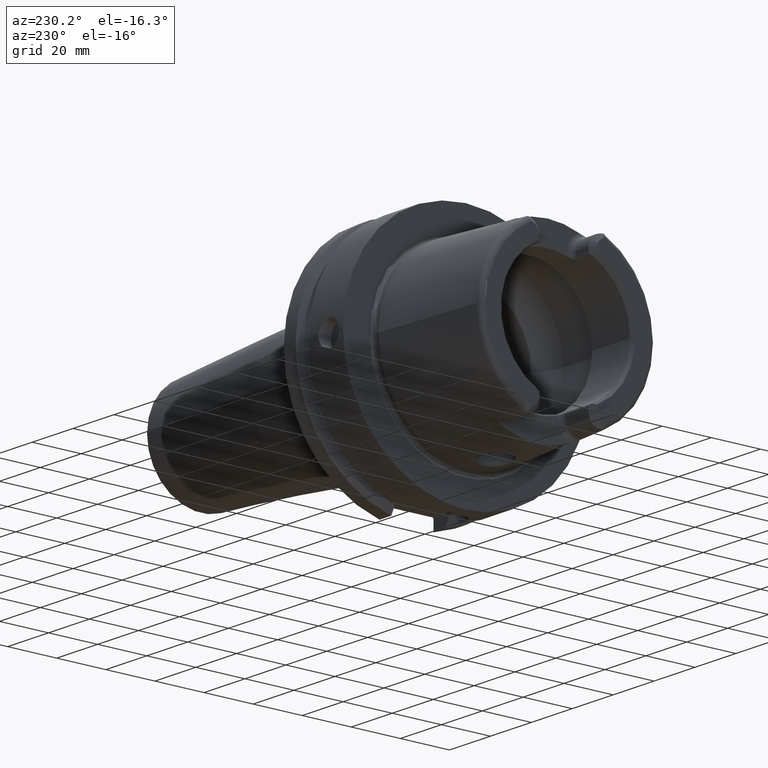
[diagram: clean part render]
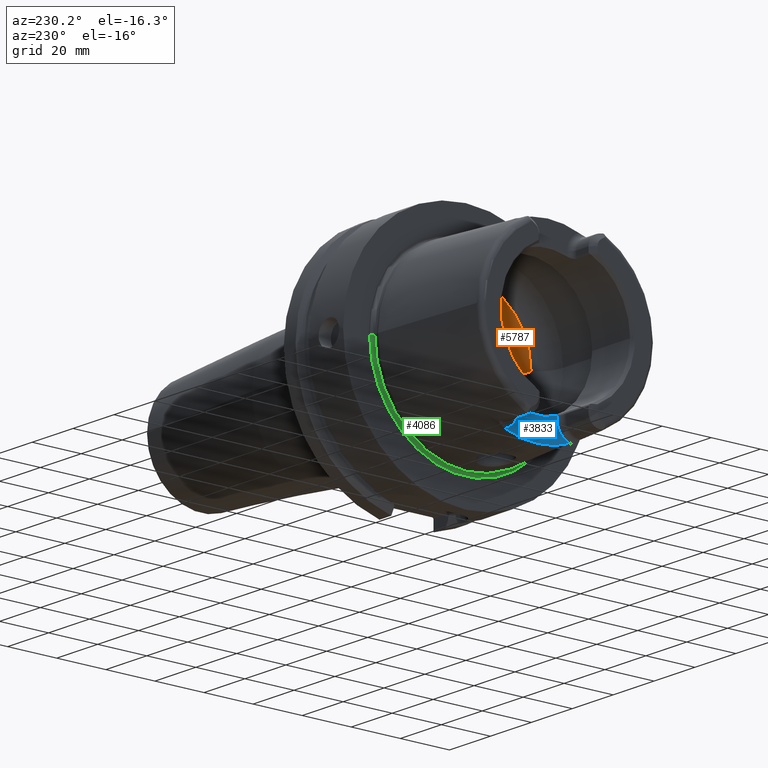
[diagram: same view with three faces highlighted in distinct colors, each labeled with its STEP entity id]
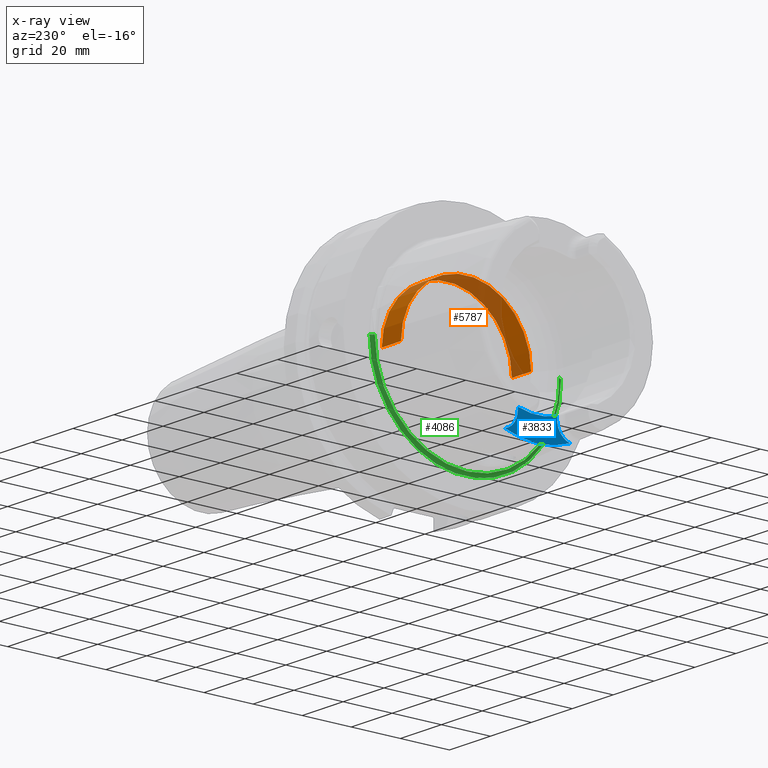
[diagram: x-ray of the same camera — body ghosted, the three highlighted faces saturated]
A machine part, auxiliary view with three faces highlighted in distinct colors.
The next image is the same camera in x-ray (body ghosted, the three faces saturated) — at least one of them is partly hidden behind the body in this view.
Their STEP definitions:

[orange] entity #5787 — the highlighted cylindrical surface (partial cylindrical patch) has radius 26.5 mm, axis along (1, 0, 0).
#2080=CARTESIAN_POINT('',(-1.E-1,0.E0,0.E0));
#2081=DIRECTION('',(1.E0,0.E0,0.E0));
#2082=DIRECTION('',(0.E0,1.E0,0.E0));
#2083=AXIS2_PLACEMENT_3D('',#2080,#2081,#2082);
#2242=DIRECTION('',(-1.E0,0.E0,0.E0));
#2243=VECTOR('',#2242,9.4E0);
#2244=CARTESIAN_POINT('',(9.3E0,2.65E1,0.E0));
#2245=LINE('',#2244,#2243);
#2251=DIRECTION('',(-1.E0,0.E0,0.E0));
#2252=VECTOR('',#2251,9.4E0);
#2253=CARTESIAN_POINT('',(9.3E0,-2.65E1,0.E0));
#2254=LINE('',#2253,#2252);
#2255=CARTESIAN_POINT('',(9.3E0,0.E0,0.E0));
#2256=DIRECTION('',(1.E0,0.E0,0.E0));
#2257=DIRECTION('',(0.E0,1.E0,0.E0));
#2258=AXIS2_PLACEMENT_3D('',#2255,#2256,#2257);
#2726=CARTESIAN_POINT('',(9.3E0,2.65E1,0.E0));
#2728=VERTEX_POINT('',#2726);
#2730=CARTESIAN_POINT('',(9.3E0,-2.65E1,0.E0));
#2732=VERTEX_POINT('',#2730);
#2733=CARTESIAN_POINT('',(-1.E-1,2.65E1,0.E0));
#2734=VERTEX_POINT('',#2733);
#2745=CARTESIAN_POINT('',(-1.E-1,-2.65E1,0.E0));
#2746=VERTEX_POINT('',#2745);
#5775=CARTESIAN_POINT('',(-5.3125E1,0.E0,0.E0));
#5776=DIRECTION('',(1.E0,0.E0,0.E0));
#5777=DIRECTION('',(0.E0,-1.E0,0.E0));
#5778=AXIS2_PLACEMENT_3D('',#5775,#5776,#5777);
#5779=CYLINDRICAL_SURFACE('',#5778,2.65E1);
#5780=ORIENTED_EDGE('',*,*,#5765,.T.);
#5781=ORIENTED_EDGE('',*,*,#5699,.T.);
#5782=ORIENTED_EDGE('',*,*,#5769,.F.);
#5784=ORIENTED_EDGE('',*,*,#5783,.F.);
#5785=EDGE_LOOP('',(#5780,#5781,#5782,#5784));
#5786=FACE_OUTER_BOUND('',#5785,.F.);
#5787=ADVANCED_FACE('',(#5786),#5779,.F.);
#2084=CIRCLE('',#2083,2.65E1);
#2259=CIRCLE('',#2258,2.65E1);
#5699=EDGE_CURVE('',#2734,#2746,#2084,.T.);
#5765=EDGE_CURVE('',#2728,#2734,#2245,.T.);
#5769=EDGE_CURVE('',#2732,#2746,#2254,.T.);
#5783=EDGE_CURVE('',#2728,#2732,#2259,.T.);

[blue] entity #3833 — the highlighted planar face has unit normal (-1, 0, 0).
#549=CARTESIAN_POINT('',(-3.5E1,0.E0,0.E0));
#550=DIRECTION('',(1.E0,0.E0,0.E0));
#551=DIRECTION('',(0.E0,-3.659355944317E-1,-9.306401779033E-1));
#552=AXIS2_PLACEMENT_3D('',#549,#550,#551);
#659=CARTESIAN_POINT('',(-3.5E1,1.326662904053E1,-3.373942900971E1));
#700=CARTESIAN_POINT('',(-3.5E1,-8.009999999994E0,-2.576044140549E1));
#701=CARTESIAN_POINT('',(-3.5E1,-7.269616392494E0,-2.599521452766E1));
#702=CARTESIAN_POINT('',(-3.5E1,-5.774680607735E0,-2.639793295020E1));
#703=CARTESIAN_POINT('',(-3.5E1,-3.481759859027E0,-2.680464578135E1));
#704=CARTESIAN_POINT('',(-3.5E1,-1.163574268408E0,-2.700848033442E1));
#705=CARTESIAN_POINT('',(-3.5E1,1.163574229636E0,-2.700848033529E1));
#706=CARTESIAN_POINT('',(-3.5E1,3.481759771636E0,-2.680464579107E1));
#707=CARTESIAN_POINT('',(-3.5E1,5.774680487919E0,-2.639793297771E1));
#708=CARTESIAN_POINT('',(-3.5E1,7.269616343063E0,-2.599521454333E1));
#709=CARTESIAN_POINT('',(-3.5E1,8.009999999993E0,-2.576044140549E1));
#711=DIRECTION('',(0.E0,-5.262912738182E-12,-1.E0));
#712=VECTOR('',#711,1.199558594507E0);
#713=CARTESIAN_POINT('',(-3.5E1,-8.009999999994E0,-2.576044140549E1));
#714=LINE('',#713,#712);
#715=CARTESIAN_POINT('',(-3.5E1,-1.501E1,-2.696E1));
#716=DIRECTION('',(-1.E0,0.E0,0.E0));
#717=DIRECTION('',(0.E0,1.E0,0.E0));
#718=AXIS2_PLACEMENT_3D('',#715,#716,#717);
#720=CARTESIAN_POINT('',(-3.5E1,1.501E1,-2.696E1));
#721=DIRECTION('',(-1.E0,0.E0,0.E0));
#722=DIRECTION('',(0.E0,-2.490529942106E-1,-9.684898585296E-1));
#723=AXIS2_PLACEMENT_3D('',#720,#721,#722);
#725=DIRECTION('',(0.E0,-6.865183864462E-12,1.E0));
#726=VECTOR('',#725,1.199558594503E0);
#727=CARTESIAN_POINT('',(-3.5E1,8.010000000001E0,-2.695999999999E1));
#728=LINE('',#727,#726);
#799=CARTESIAN_POINT('',(-3.5E1,-1.326662904053E1,-3.373942900971E1));
#2845=VERTEX_POINT('',#799);
#2846=VERTEX_POINT('',#659);
#2850=CARTESIAN_POINT('',(-3.5E1,-8.01E0,-2.696E1));
#2852=VERTEX_POINT('',#2850);
#2854=CARTESIAN_POINT('',(-3.5E1,8.01E0,-2.696E1));
#2856=VERTEX_POINT('',#2854);
#2862=VERTEX_POINT('',#700);
#2863=VERTEX_POINT('',#709);
#3818=CARTESIAN_POINT('',(-3.5E1,0.E0,0.E0));
#3819=DIRECTION('',(-1.E0,0.E0,0.E0));
#3820=DIRECTION('',(0.E0,0.E0,1.E0));
#3821=AXIS2_PLACEMENT_3D('',#3818,#3819,#3820);
#3822=PLANE('',#3821);
#3823=ORIENTED_EDGE('',*,*,#3809,.F.);
#3825=ORIENTED_EDGE('',*,*,#3824,.T.);
#3827=ORIENTED_EDGE('',*,*,#3826,.T.);
#3828=ORIENTED_EDGE('',*,*,#3657,.T.);
#3829=ORIENTED_EDGE('',*,*,#3715,.T.);
#3830=ORIENTED_EDGE('',*,*,#3727,.T.);
#3831=EDGE_LOOP('',(#3823,#3825,#3827,#3828,#3829,#3830));
#3832=FACE_OUTER_BOUND('',#3831,.F.);
#3833=ADVANCED_FACE('',(#3832),#3822,.T.);
#553=CIRCLE('',#552,3.6254E1);
#710=B_SPLINE_CURVE_WITH_KNOTS('',3,(#700,#701,#702,#703,#704,#705,#706,#707,
#708,#709),.UNSPECIFIED.,.F.,.F.,(4,1,1,1,1,1,1,4),(0.E0,1.428571428571E-1,
2.857142857143E-1,4.285714285714E-1,5.714285714286E-1,7.142857142857E-1,
8.571428571429E-1,1.E0),.UNSPECIFIED.);
#719=CIRCLE('',#718,7.E0);
#724=CIRCLE('',#723,7.E0);
#3657=EDGE_CURVE('',#2845,#2846,#553,.T.);
#3715=EDGE_CURVE('',#2846,#2856,#724,.T.);
#3727=EDGE_CURVE('',#2856,#2863,#728,.T.);
#3809=EDGE_CURVE('',#2862,#2863,#710,.T.);
#3824=EDGE_CURVE('',#2862,#2852,#714,.T.);
#3826=EDGE_CURVE('',#2852,#2845,#719,.T.);

[green] entity #4086 — the highlighted toroidal blend (fillet) surface has major radius 38.6823 mm and minor (blend) radius 1 mm.
#867=CARTESIAN_POINT('',(-7.005712886803E-1,0.E0,0.E0));
#868=DIRECTION('',(-1.E0,0.E0,0.E0));
#869=DIRECTION('',(0.E0,1.E0,0.E0));
#870=AXIS2_PLACEMENT_3D('',#867,#868,#869);
#882=CARTESIAN_POINT('',(-7.005712886803E-1,3.868225E1,0.E0));
#883=DIRECTION('',(0.E0,0.E0,-1.E0));
#884=DIRECTION('',(9.304175679820E-1,3.665012267243E-1,0.E0));
#885=AXIS2_PLACEMENT_3D('',#882,#883,#884);
#887=CARTESIAN_POINT('',(-7.005712886803E-1,-3.868225E1,0.E0));
#888=DIRECTION('',(0.E0,0.E0,1.E0));
#889=DIRECTION('',(9.304175679820E-1,-3.665012267243E-1,0.E0));
#890=AXIS2_PLACEMENT_3D('',#887,#888,#889);
#892=CARTESIAN_POINT('',(2.298462793018E-1,0.E0,0.E0));
#893=DIRECTION('',(-1.E0,0.E0,0.E0));
#894=DIRECTION('',(0.E0,1.E0,0.E0));
#895=AXIS2_PLACEMENT_3D('',#892,#893,#894);
#2697=CARTESIAN_POINT('',(2.298462793018E-1,-3.904875122672E1,0.E0));
#2698=CARTESIAN_POINT('',(-7.005712886803E-1,-3.768225E1,0.E0));
#2699=VERTEX_POINT('',#2697);
#2700=VERTEX_POINT('',#2698);
#2705=CARTESIAN_POINT('',(2.298462793018E-1,3.904875122672E1,0.E0));
#2706=CARTESIAN_POINT('',(-7.005712886803E-1,3.768225E1,0.E0));
#2707=VERTEX_POINT('',#2705);
#2708=VERTEX_POINT('',#2706);
#4074=CARTESIAN_POINT('',(-7.005712886803E-1,0.E0,0.E0));
#4075=DIRECTION('',(-1.E0,0.E0,0.E0));
#4076=DIRECTION('',(0.E0,-1.E0,0.E0));
#4077=AXIS2_PLACEMENT_3D('',#4074,#4075,#4076);
#4078=TOROIDAL_SURFACE('',#4077,3.868225E1,1.E0);
#4079=ORIENTED_EDGE('',*,*,#4067,.T.);
#4080=ORIENTED_EDGE('',*,*,#4041,.T.);
#4081=ORIENTED_EDGE('',*,*,#4064,.F.);
#4083=ORIENTED_EDGE('',*,*,#4082,.F.);
#4084=EDGE_LOOP('',(#4079,#4080,#4081,#4083));
#4085=FACE_OUTER_BOUND('',#4084,.F.);
#4086=ADVANCED_FACE('',(#4085),#4078,.F.);
#871=CIRCLE('',#870,3.768225E1);
#886=CIRCLE('',#885,1.E0);
#891=CIRCLE('',#890,1.E0);
#896=CIRCLE('',#895,3.904875122672E1);
#4041=EDGE_CURVE('',#2708,#2700,#871,.T.);
#4064=EDGE_CURVE('',#2699,#2700,#891,.T.);
#4067=EDGE_CURVE('',#2707,#2708,#886,.T.);
#4082=EDGE_CURVE('',#2707,#2699,#896,.T.);